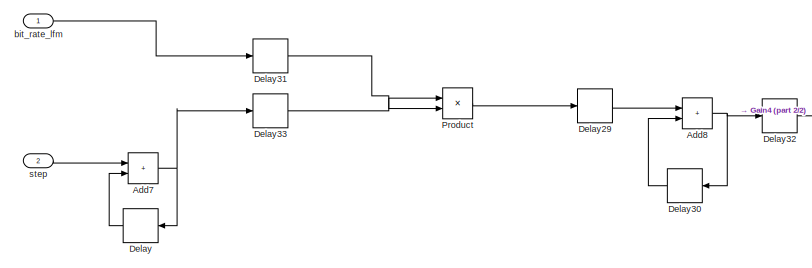
[diagram: root canvas - part 1/2, left side, full height]
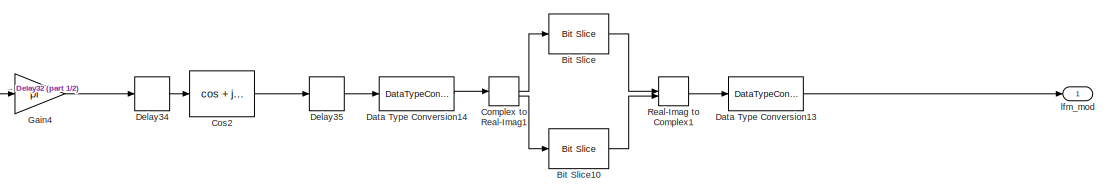
[diagram: root canvas - part 2/2, middle right region]
MODEL slx_2a41d5833d09
KIND model
CONFIG AbsTol = auto
CONFIG EnableMultiTasking = off
CONFIG FixedStep = 5.3333333333333331e-09
CONFIG MaxStep = auto
CONFIG MinStep = auto
CONFIG RelTol = 1e-3
CONFIG SampleTimeConstraint = Unconstrained
CONFIG SolverName = FixedStepAuto
CONFIG StartTime = 0.0
CONFIG StopTime = 10.0
BLOCK [Sum] Add7
  AccumDataTypeStr = fixdt(1,24,23)
  IconShape = rectangular
  OutDataTypeStr = fixdt(1,24,23)
BLOCK [Sum] Add8
  AccumDataTypeStr = Inherit: Same as first input
  IconShape = rectangular
  OutDataTypeStr = fixdt(1, 24, 23)
BLOCK [Reference] Bit Slice  REF=hdlsllib/Logic and Bit
Operations/Bit Slice
  SourceBlock = hdlsllib/Logic and Bit\nOperations/Bit Slice
  SourceType = Bit Slice
BLOCK [Reference] Bit Slice10  REF=hdlsllib/Logic and Bit
Operations/Bit Slice
  SourceBlock = hdlsllib/Logic and Bit\nOperations/Bit Slice
  SourceType = Bit Slice
BLOCK [ComplexToRealImag] Complex to Real-Imag1
BLOCK [Trigonometry] Cos2
  ApproximationMethod = CORDIC
  Operator = cos + jsin
BLOCK [DataTypeConversion] Data Type Conversion13
  OutDataTypeStr = int16
  RndMeth = Floor
  SaturateOnIntegerOverflow = off
BLOCK [DataTypeConversion] Data Type Conversion14
  OutDataTypeStr = fixdt(1,16, 15)
  RndMeth = Nearest
BLOCK [Delay] Delay
  DelayLength = 1
  InputPortMap = u0
  NameLocation = top
BLOCK [Delay] Delay29
  InputPortMap = u0
BLOCK [Delay] Delay30
  DelayLength = 1
  InputPortMap = u0
  NameLocation = top
BLOCK [Delay] Delay31
  DelayLength = 1
  InputPortMap = u0
  SampleTime = 1/187.5e6
BLOCK [Delay] Delay32
  DelayLength = 1
  InputPortMap = u0
BLOCK [Delay] Delay33
  DelayLength = 1
  InputPortMap = u0
  SampleTime = 1/187.5e6
BLOCK [Delay] Delay34
  InputPortMap = u0
BLOCK [Delay] Delay35
  DelayLength = 11
  InputPortMap = u0
BLOCK [Gain] Gain4
  Gain = pi
  OutDataTypeStr = fixdt(1,24,20)
BLOCK [Product] Product
  OutDataTypeStr = Inherit: Same as first input
BLOCK [RealImagToComplex] Real-Imag to Complex1
BLOCK [Inport] bit_rate_lfm
  OutDataTypeStr = fixdt(1,24,23)
  PortDimensions = 1
  SampleTime = [5.3333333333333331e-09,0]
  SamplingMode = Sample based
  SignalType = real
BLOCK [Outport] lfm_mod
  OutDataTypeStr = int16
  PortDimensions = 1
  SampleTime = [5.3333333333333331e-09,0]
  SamplingMode = Sample based
  SignalType = complex
BLOCK [Inport] step
  OutDataTypeStr = fixdt(1,24,23)
  Port = 2
  PortDimensions = 1
  SampleTime = [5.3333333333333331e-09,0]
  SamplingMode = Sample based
  SignalType = real
NET Add7:1 -> Delay33:1, Delay:1
NET Add8:1 -> Delay30:1, Delay32:1
LINE Bit Slice10:1 -> Real-Imag to Complex1:2
LINE Bit Slice:1 -> Real-Imag to Complex1:1
LINE Complex to Real-Imag1:1 -> Bit Slice:1
LINE Complex to Real-Imag1:2 -> Bit Slice10:1
LINE Cos2:1 -> Delay35:1
LINE Data Type Conversion13:1 -> lfm_mod:1
LINE Data Type Conversion14:1 -> Complex to Real-Imag1:1
LINE Delay29:1 -> Add8:1
LINE Delay30:1 -> Add8:2
LINE Delay31:1 -> Product:2
LINE Delay32:1 -> Gain4:1
LINE Delay33:1 -> Product:1
LINE Delay34:1 -> Cos2:1
LINE Delay35:1 -> Data Type Conversion14:1
LINE Delay:1 -> Add7:2
LINE Gain4:1 -> Delay34:1
LINE Product:1 -> Delay29:1
LINE Real-Imag to Complex1:1 -> Data Type Conversion13:1
LINE bit_rate_lfm:1 -> Delay31:1
LINE step:1 -> Add7:1
note: NET lines group one-source signal fan-out (src -> all destinations, sorted); 1:1 wires keep LINE
